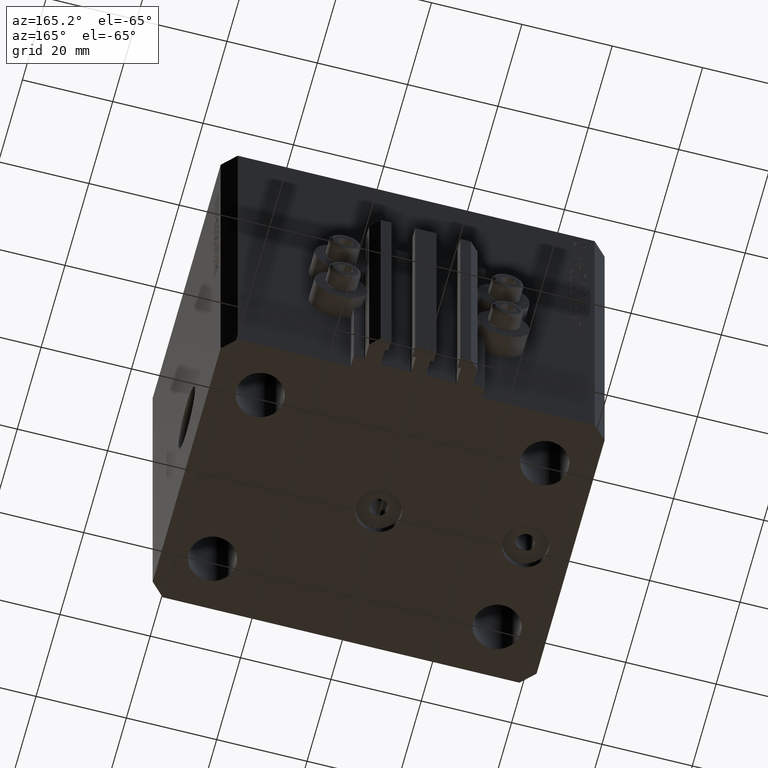
[diagram: clean part render]
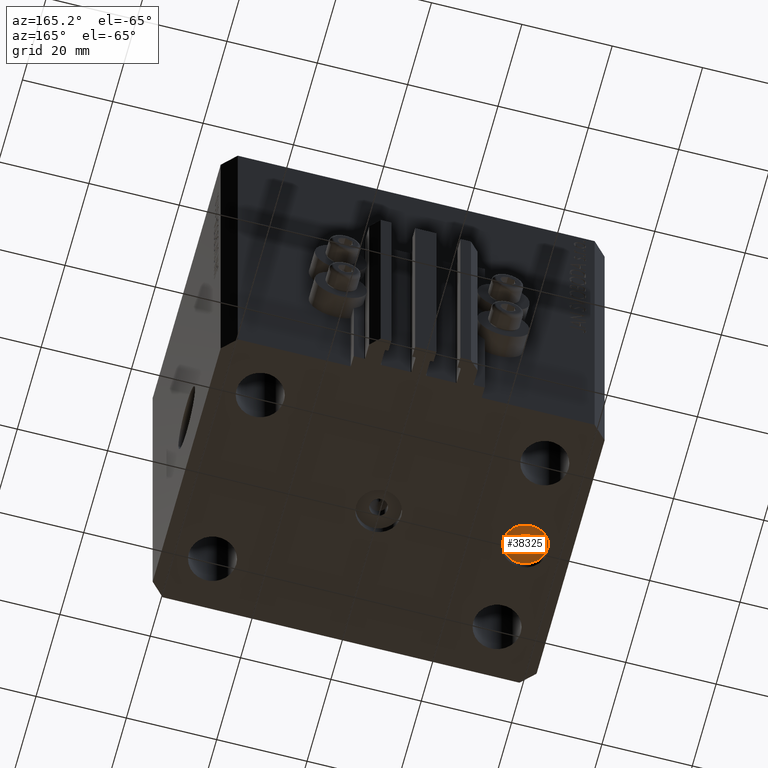
[diagram: same view with one face highlighted and labeled with its STEP entity id]
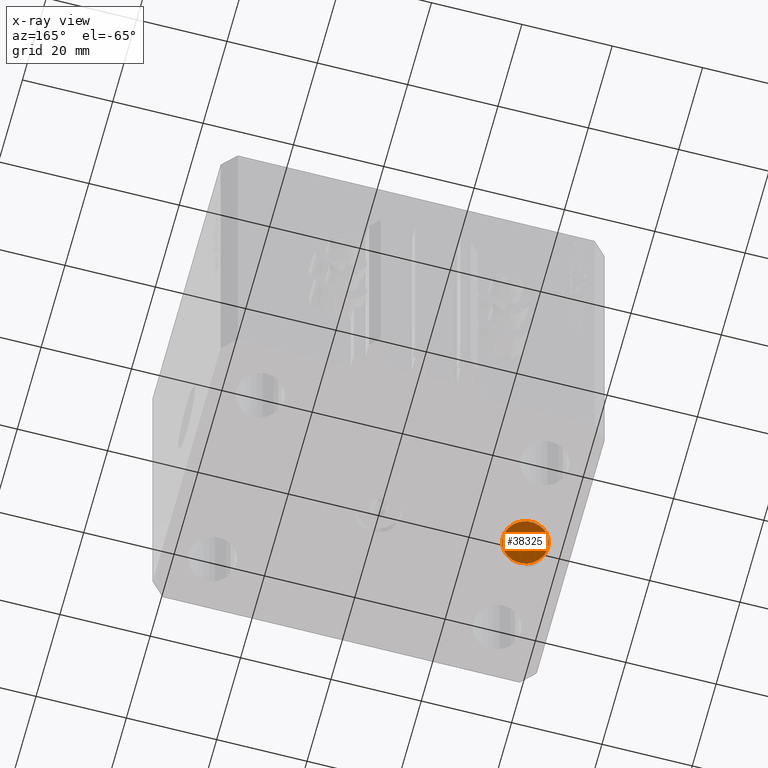
[diagram: x-ray of the same camera — body ghosted, the highlighted face saturated]
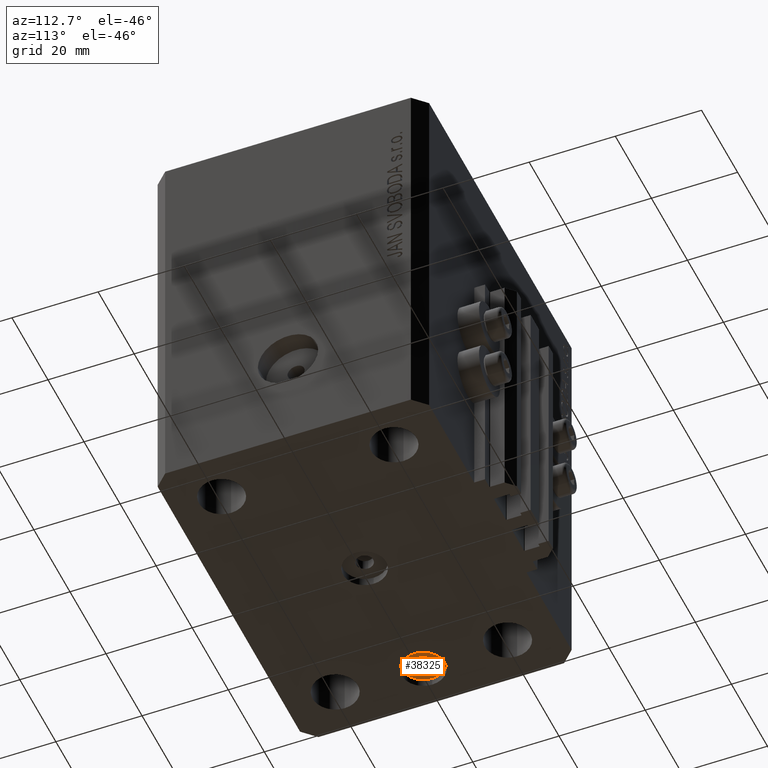
[diagram: same view with one face highlighted and labeled with its STEP entity id]
A machine part, auxiliary view. The second image highlights one B-rep face of the part: STEP entity #38325.
The next image is the same camera in x-ray: the body ghosted, the highlighted face saturated — about 0% of this face is hidden behind the body in this view.
A second angle (auxiliary view) of the same face is appended — the face is thin or edge-on in the first view.
In plain terms, the highlighted planar face has unit normal (0, 0, -1).
Its self-contained STEP definition (entity closure, byte-faithful):
#693 = CARTESIAN_POINT ( 'NONE',  ( -32.50000000000000000, 0.000000000000000000, -91.09999999999999432 ) ) ;
#827 = ORIENTED_EDGE ( 'NONE', *, *, #44159, .T. ) ;
#1160 = DIRECTION ( 'NONE',  ( 0.000000000000000000, 0.000000000000000000, -1.000000000000000000 ) ) ;
#4339 = EDGE_CURVE ( 'NONE', #17198, #28669, #23746, .T. ) ;
#4640 = CIRCLE ( 'NONE', #32075, 2.000000000000001776 ) ;
#6031 = CARTESIAN_POINT ( 'NONE',  ( -34.50000000000000000, 0.000000000000000000, -91.09999999999999432 ) ) ;
#6181 = AXIS2_PLACEMENT_3D ( 'NONE', #41021, #26227, #40794 ) ;
#7781 = CARTESIAN_POINT ( 'NONE',  ( -32.50000000000000000, 0.000000000000000000, -91.09999999999999432 ) ) ;
#8329 = DIRECTION ( 'NONE',  ( -1.000000000000000000, 0.000000000000000000, 0.000000000000000000 ) ) ;
#8664 = DIRECTION ( 'NONE',  ( -1.000000000000000000, 0.000000000000000000, 0.000000000000000000 ) ) ;
#8697 = CIRCLE ( 'NONE', #28481, 4.999999999999997335 ) ;
#11654 = PLANE ( 'NONE',  #6181 ) ;
#12429 = CARTESIAN_POINT ( 'NONE',  ( -37.50000000000000000, 0.000000000000000000, -91.09999999999999432 ) ) ;
#14460 = DIRECTION ( 'NONE',  ( 0.000000000000000000, 0.000000000000000000, -1.000000000000000000 ) ) ;
#15159 = DIRECTION ( 'NONE',  ( 0.000000000000000000, 0.000000000000000000, -1.000000000000000000 ) ) ;
#15504 = EDGE_LOOP ( 'NONE', ( #20362, #25653 ) ) ;
#16438 = CARTESIAN_POINT ( 'NONE',  ( -27.50000000000000355, 6.123233995736762338E-16, -91.09999999999999432 ) ) ;
#17198 = VERTEX_POINT ( 'NONE', #16438 ) ;
#20362 = ORIENTED_EDGE ( 'NONE', *, *, #36678, .F. ) ;
#20678 = CARTESIAN_POINT ( 'NONE',  ( -32.50000000000000000, 0.000000000000000000, -91.09999999999999432 ) ) ;
#20697 = CIRCLE ( 'NONE', #24521, 2.000000000000001776 ) ;
#23134 = EDGE_LOOP ( 'NONE', ( #827, #39450 ) ) ;
#23746 = CIRCLE ( 'NONE', #24494, 4.999999999999997335 ) ;
#24494 = AXIS2_PLACEMENT_3D ( 'NONE', #7781, #15159, #8664 ) ;
#24521 = AXIS2_PLACEMENT_3D ( 'NONE', #20678, #14460, #42639 ) ;
#24525 = VERTEX_POINT ( 'NONE', #34246 ) ;
#25653 = ORIENTED_EDGE ( 'NONE', *, *, #39406, .F. ) ;
#26227 = DIRECTION ( 'NONE',  ( 0.000000000000000000, 0.000000000000000000, -1.000000000000000000 ) ) ;
#26687 = VERTEX_POINT ( 'NONE', #6031 ) ;
#28481 = AXIS2_PLACEMENT_3D ( 'NONE', #693, #1160, #8329 ) ;
#28669 = VERTEX_POINT ( 'NONE', #12429 ) ;
#32075 = AXIS2_PLACEMENT_3D ( 'NONE', #37440, #33865, #33154 ) ;
#33154 = DIRECTION ( 'NONE',  ( -1.000000000000000000, 0.000000000000000000, 0.000000000000000000 ) ) ;
#33865 = DIRECTION ( 'NONE',  ( 0.000000000000000000, 0.000000000000000000, -1.000000000000000000 ) ) ;
#34246 = CARTESIAN_POINT ( 'NONE',  ( -30.50000000000000000, 2.449293598294711345E-16, -91.09999999999999432 ) ) ;
#36678 = EDGE_CURVE ( 'NONE', #26687, #24525, #4640, .T. ) ;
#37440 = CARTESIAN_POINT ( 'NONE',  ( -32.50000000000000000, 0.000000000000000000, -91.09999999999999432 ) ) ;
#38325 = ADVANCED_FACE ( 'NONE', ( #43652, #40065 ), #11654, .T. ) ;
#39406 = EDGE_CURVE ( 'NONE', #24525, #26687, #20697, .T. ) ;
#39450 = ORIENTED_EDGE ( 'NONE', *, *, #4339, .T. ) ;
#40065 = FACE_OUTER_BOUND ( 'NONE', #23134, .T. ) ;
#40794 = DIRECTION ( 'NONE',  ( -1.000000000000000000, 0.000000000000000000, -0.000000000000000000 ) ) ;
#41021 = CARTESIAN_POINT ( 'NONE',  ( -32.50000000000000000, 0.000000000000000000, -91.09999999999999432 ) ) ;
#42639 = DIRECTION ( 'NONE',  ( -1.000000000000000000, 0.000000000000000000, 0.000000000000000000 ) ) ;
#43652 = FACE_BOUND ( 'NONE', #15504, .T. ) ;
#44159 = EDGE_CURVE ( 'NONE', #28669, #17198, #8697, .T. ) ;